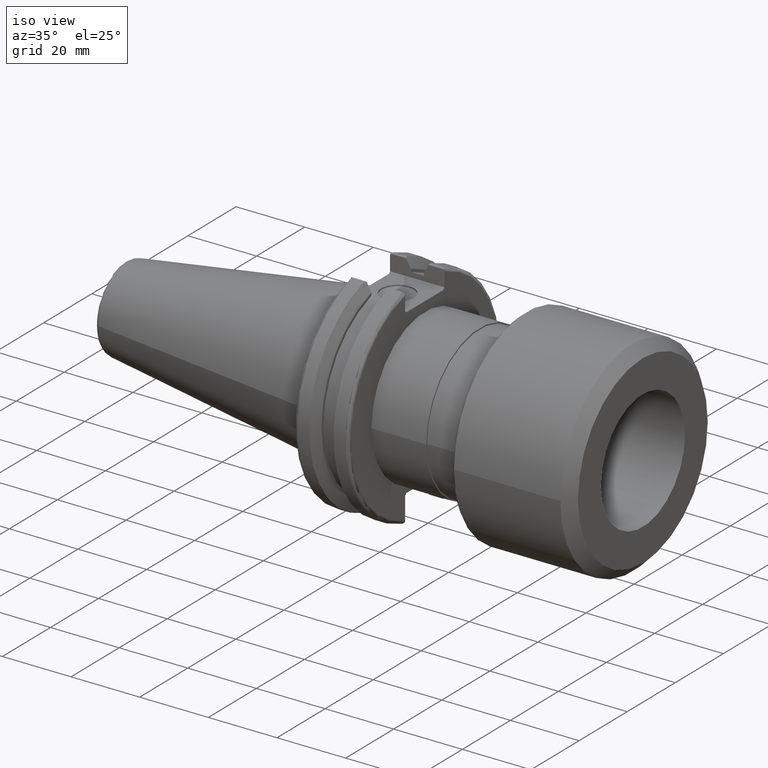
[diagram: clean part render]
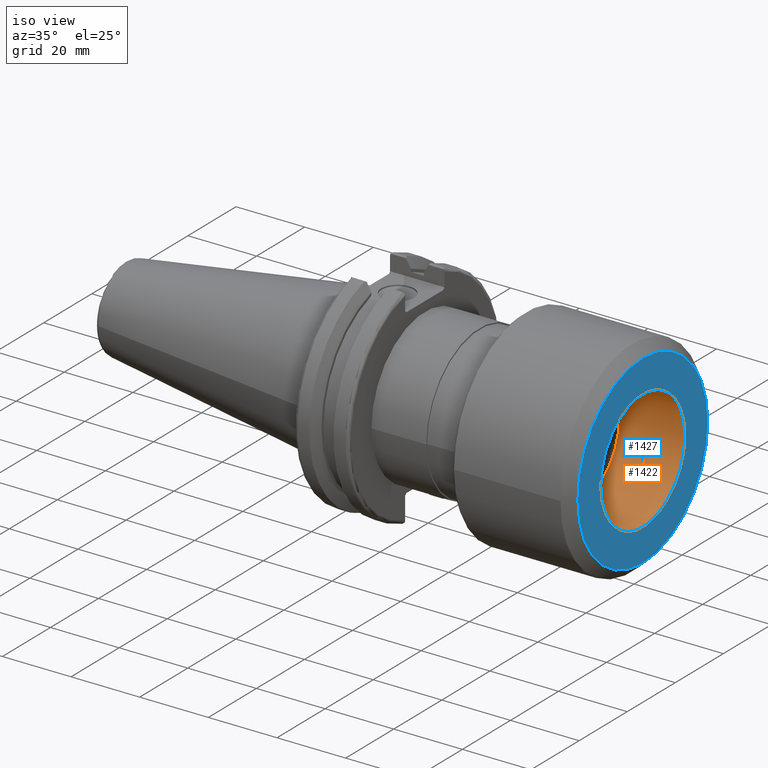
[diagram: same view with the hole feature highlighted: cylindrical wall and planar end face, labeled with their STEP entity ids]
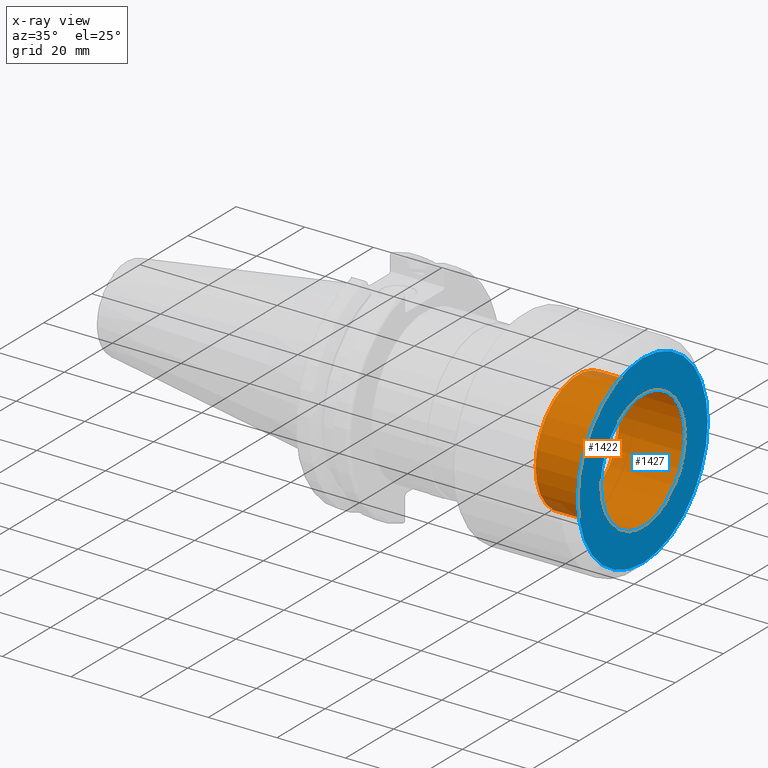
[diagram: x-ray of the same camera — body ghosted, the hole faces saturated]
A machine part, iso view. The highlighted faces form one hole feature of diameter 35 mm: the cylindrical wall (entity #1422, orange) and its adjacent planar end face (entity #1427, blue) — they share a circular edge in the B-rep.
The next image is the same camera in x-ray (body ghosted, the hole faces saturated) — the bore reads through the body.
Wall:
#348=CYLINDRICAL_SURFACE('',#1667,17.5);
#414=FACE_OUTER_BOUND('',#495,.T.);
#495=EDGE_LOOP('',(#1316,#1317,#1318,#1319));
#578=LINE('',#2699,#655);
#655=VECTOR('',#2037,17.5);
#714=CIRCLE('',#1668,17.5);
#715=CIRCLE('',#1669,17.5);
#826=VERTEX_POINT('',#2696);
#827=VERTEX_POINT('',#2698);
#991=EDGE_CURVE('',#826,#826,#714,.T.);
#992=EDGE_CURVE('',#826,#827,#578,.T.);
#993=EDGE_CURVE('',#827,#827,#715,.T.);
#1316=ORIENTED_EDGE('',*,*,#991,.F.);
#1317=ORIENTED_EDGE('',*,*,#992,.T.);
#1318=ORIENTED_EDGE('',*,*,#993,.T.);
#1319=ORIENTED_EDGE('',*,*,#992,.F.);
#1422=ADVANCED_FACE('',(#414),#348,.F.);
#1667=AXIS2_PLACEMENT_3D('',#2695,#2033,#2034);
#1668=AXIS2_PLACEMENT_3D('',#2697,#2035,#2036);
#1669=AXIS2_PLACEMENT_3D('',#2700,#2038,#2039);
#2033=DIRECTION('center_axis',(-1.,0.,0.));
#2034=DIRECTION('ref_axis',(0.,1.,0.));
#2035=DIRECTION('center_axis',(-1.,0.,0.));
#2036=DIRECTION('ref_axis',(0.,1.,0.));
#2037=DIRECTION('',(-1.,0.,0.));
#2038=DIRECTION('center_axis',(-1.,0.,0.));
#2039=DIRECTION('ref_axis',(0.,0.,1.));
#2695=CARTESIAN_POINT('Origin',(25.5,0.,0.));
#2696=CARTESIAN_POINT('',(35.,-17.5,2.14313189850787E-15));
#2697=CARTESIAN_POINT('Origin',(35.,0.,0.));
#2698=CARTESIAN_POINT('',(16.,-17.5,2.14313189850787E-15));
#2699=CARTESIAN_POINT('',(25.5,-17.5,2.14313189850787E-15));
#2700=CARTESIAN_POINT('Origin',(16.,0.,0.));
End face:
#297=FACE_BOUND('',#502,.T.);
#331=PLANE('',#1681);
#419=FACE_OUTER_BOUND('',#501,.T.);
#501=EDGE_LOOP('',(#1337));
#502=EDGE_LOOP('',(#1338));
#714=CIRCLE('',#1668,17.5);
#718=CIRCLE('',#1675,27.);
#826=VERTEX_POINT('',#2696);
#830=VERTEX_POINT('',#2709);
#991=EDGE_CURVE('',#826,#826,#714,.T.);
#997=EDGE_CURVE('',#830,#830,#718,.T.);
#1337=ORIENTED_EDGE('',*,*,#997,.F.);
#1338=ORIENTED_EDGE('',*,*,#991,.T.);
#1427=ADVANCED_FACE('',(#419,#297),#331,.T.);
#1668=AXIS2_PLACEMENT_3D('',#2697,#2035,#2036);
#1675=AXIS2_PLACEMENT_3D('',#2710,#2051,#2052);
#1681=AXIS2_PLACEMENT_3D('',#2722,#2065,#2066);
#2035=DIRECTION('center_axis',(-1.,0.,0.));
#2036=DIRECTION('ref_axis',(0.,1.,0.));
#2051=DIRECTION('center_axis',(-1.,0.,0.));
#2052=DIRECTION('ref_axis',(0.,-1.,0.));
#2065=DIRECTION('center_axis',(1.,0.,0.));
#2066=DIRECTION('ref_axis',(0.,0.,-1.));
#2696=CARTESIAN_POINT('',(35.,-17.5,2.14313189850787E-15));
#2697=CARTESIAN_POINT('Origin',(35.,0.,0.));
#2709=CARTESIAN_POINT('',(35.,27.,-3.30654635769785E-15));
#2710=CARTESIAN_POINT('Origin',(35.,0.,0.));
#2722=CARTESIAN_POINT('Origin',(35.,0.,0.));